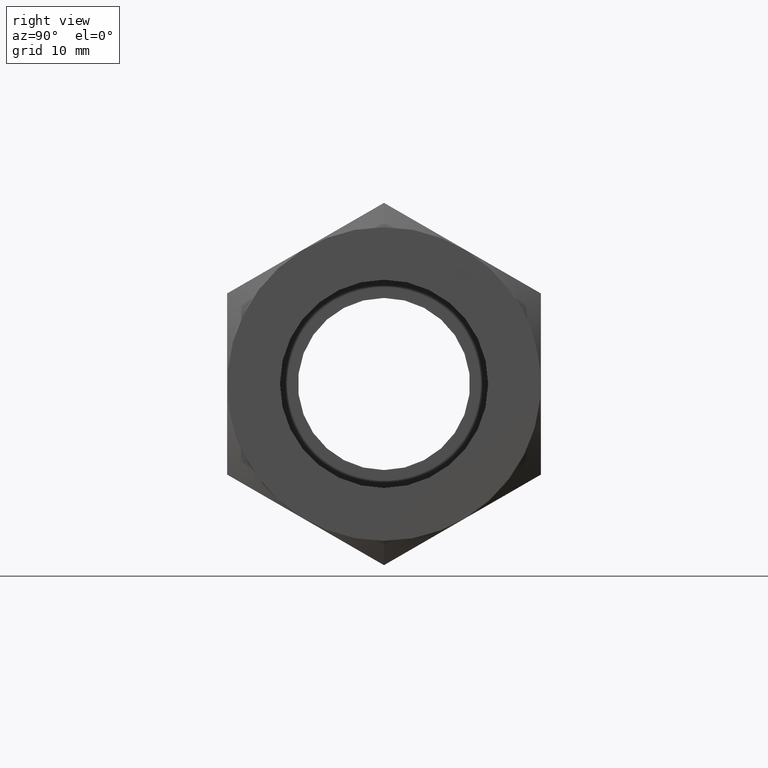
[diagram: clean part render]
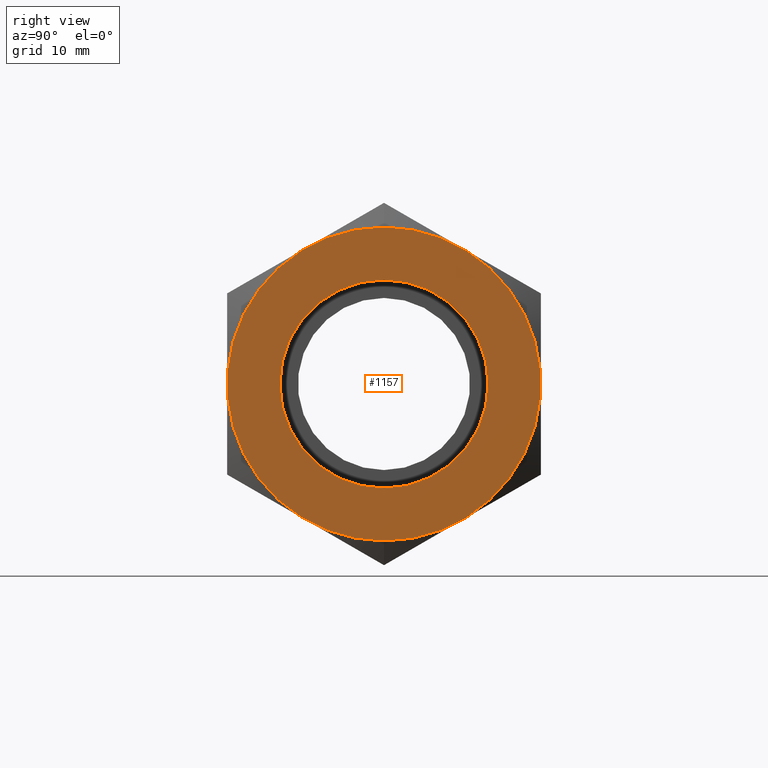
[diagram: same view with one face highlighted and labeled with its STEP entity id]
A machine part, right view. The second image highlights one B-rep face of the part: STEP entity #1157.
In plain terms, the highlighted planar face has unit normal (1, -0, -0).
Its self-contained STEP definition (entity closure, byte-faithful):
#95 = AXIS2_PLACEMENT_3D ( 'NONE', #126, #1274, #818 ) ;
#126 = CARTESIAN_POINT ( 'NONE',  ( 50.54599999999999937, 0.000000000000000000, 3.130791717595889552E-31 ) ) ;
#155 = VERTEX_POINT ( 'NONE', #1348 ) ;
#166 = DIRECTION ( 'NONE',  ( -1.000000000000000000, 2.220446049250309876E-16, 2.220446049250309876E-16 ) ) ;
#179 = CARTESIAN_POINT ( 'NONE',  ( 50.54599999999999937, -4.850342349982379426E-15, -4.850342349982379426E-15 ) ) ;
#236 = ORIENTED_EDGE ( 'NONE', *, *, #454, .F. ) ;
#272 = DIRECTION ( 'NONE',  ( -1.000000000000000000, 2.220446049250309876E-16, -2.220446049250309876E-16 ) ) ;
#276 = AXIS2_PLACEMENT_3D ( 'NONE', #179, #1732, #1040 ) ;
#293 = EDGE_CURVE ( 'NONE', #155, #650, #423, .T. ) ;
#300 = CARTESIAN_POINT ( 'NONE',  ( 50.54599999999999937, -4.850342349982379426E-15, -4.850342349982379426E-15 ) ) ;
#335 = CARTESIAN_POINT ( 'NONE',  ( 50.54599999999999937, -6.187857409627179608E-15, 7.175499999999999545 ) ) ;
#397 = ORIENTED_EDGE ( 'NONE', *, *, #293, .T. ) ;
#408 = EDGE_CURVE ( 'NONE', #648, #543, #747, .T. ) ;
#423 = CIRCLE ( 'NONE', #619, 9.525000000000000355 ) ;
#432 = ORIENTED_EDGE ( 'NONE', *, *, #1269, .T. ) ;
#441 = DIRECTION ( 'NONE',  ( 0.000000000000000000, 0.000000000000000000, 1.000000000000000000 ) ) ;
#454 = EDGE_CURVE ( 'NONE', #543, #648, #652, .T. ) ;
#543 = VERTEX_POINT ( 'NONE', #1058 ) ;
#619 = AXIS2_PLACEMENT_3D ( 'NONE', #706, #272, #1430 ) ;
#638 = CARTESIAN_POINT ( 'NONE',  ( 50.54599999999999937, -3.092909771611890180E-15, -14.35099999999999909 ) ) ;
#648 = VERTEX_POINT ( 'NONE', #638 ) ;
#650 = VERTEX_POINT ( 'NONE', #1228 ) ;
#652 = CIRCLE ( 'NONE', #276, 14.35099999999999909 ) ;
#706 = CARTESIAN_POINT ( 'NONE',  ( 50.54599999999999937, 0.000000000000000000, 3.130791717595889552E-31 ) ) ;
#747 = CIRCLE ( 'NONE', #748, 14.35099999999999909 ) ;
#748 = AXIS2_PLACEMENT_3D ( 'NONE', #300, #166, #441 ) ;
#752 = AXIS2_PLACEMENT_3D ( 'NONE', #335, #1091, #1340 ) ;
#770 = FACE_OUTER_BOUND ( 'NONE', #1680, .T. ) ;
#818 = DIRECTION ( 'NONE',  ( 0.000000000000000000, 0.000000000000000000, 1.000000000000000000 ) ) ;
#900 = CIRCLE ( 'NONE', #95, 9.525000000000000355 ) ;
#1040 = DIRECTION ( 'NONE',  ( 0.000000000000000000, 0.000000000000000000, 1.000000000000000000 ) ) ;
#1058 = CARTESIAN_POINT ( 'NONE',  ( 50.54599999999999937, -6.187857409627179608E-15, 14.35099999999999909 ) ) ;
#1069 = EDGE_LOOP ( 'NONE', ( #432, #397 ) ) ;
#1091 = DIRECTION ( 'NONE',  ( 1.000000000000000000, -2.220446049250309876E-16, -2.220446049250309876E-16 ) ) ;
#1157 = ADVANCED_FACE ( 'NONE', ( #770, #1231 ), #1210, .T. ) ;
#1210 = PLANE ( 'NONE',  #752 ) ;
#1228 = CARTESIAN_POINT ( 'NONE',  ( 50.54599999999999937, 0.000000000000000000, 9.525000000000000355 ) ) ;
#1231 = FACE_BOUND ( 'NONE', #1069, .T. ) ;
#1269 = EDGE_CURVE ( 'NONE', #650, #155, #900, .T. ) ;
#1274 = DIRECTION ( 'NONE',  ( -1.000000000000000000, 2.220446049250309876E-16, -2.220446049250309876E-16 ) ) ;
#1340 = DIRECTION ( 'NONE',  ( 2.220446049250309876E-16, 1.000000000000000000, 0.000000000000000000 ) ) ;
#1348 = CARTESIAN_POINT ( 'NONE',  ( 50.54599999999999937, 1.166437552015810118E-15, -9.525000000000000355 ) ) ;
#1430 = DIRECTION ( 'NONE',  ( 0.000000000000000000, 0.000000000000000000, 1.000000000000000000 ) ) ;
#1603 = ORIENTED_EDGE ( 'NONE', *, *, #408, .F. ) ;
#1680 = EDGE_LOOP ( 'NONE', ( #236, #1603 ) ) ;
#1732 = DIRECTION ( 'NONE',  ( -1.000000000000000000, 2.220446049250309876E-16, 2.220446049250309876E-16 ) ) ;